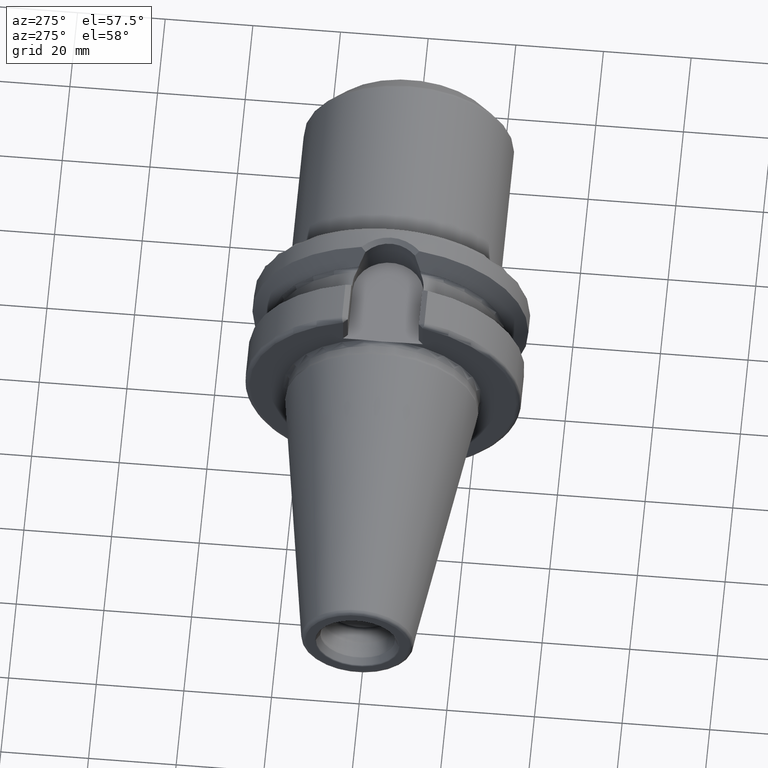
[diagram: clean part render]
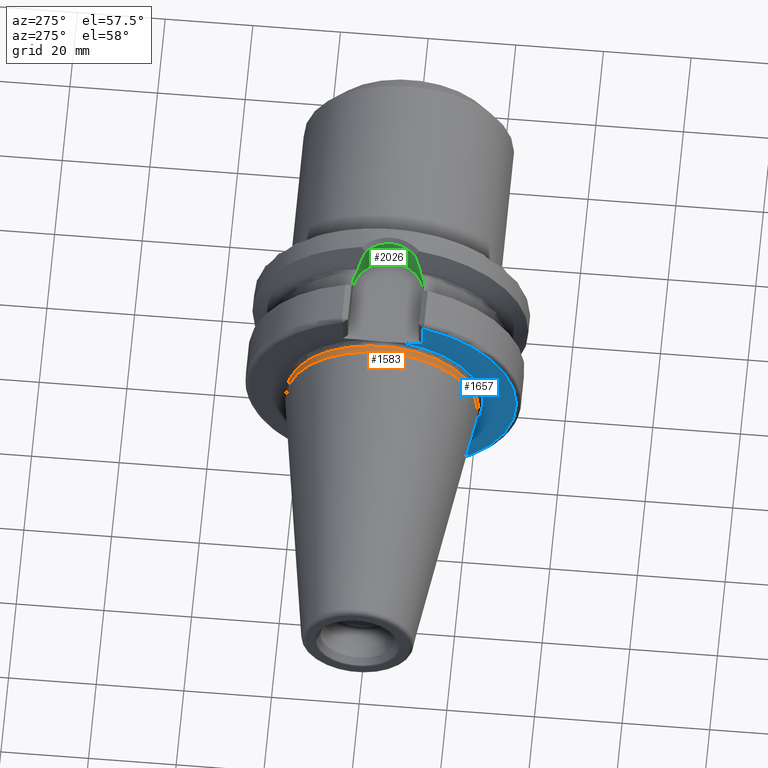
[diagram: same view with three faces highlighted in distinct colors, each labeled with its STEP entity id]
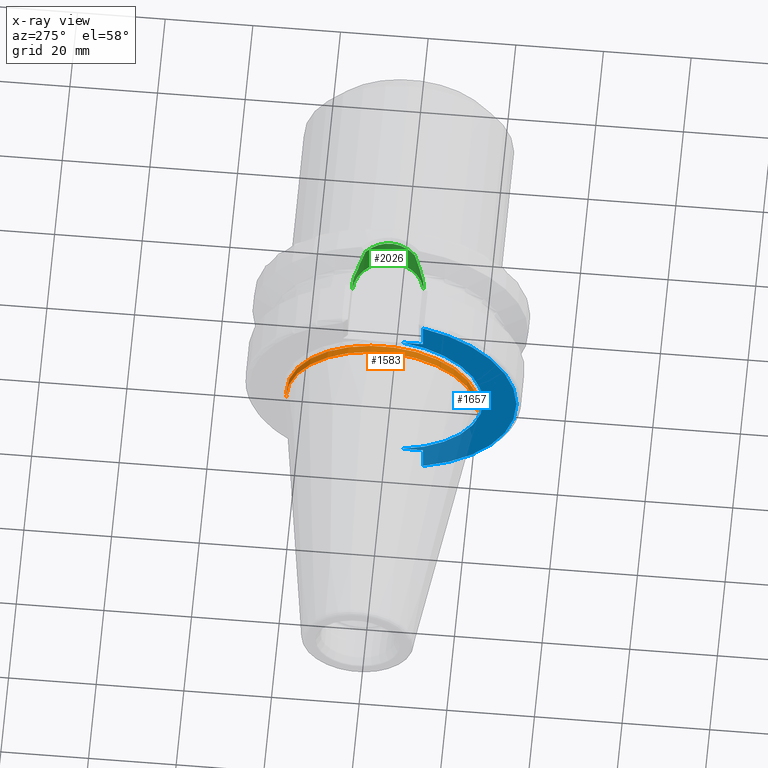
[diagram: x-ray of the same camera — body ghosted, the three highlighted faces saturated]
A machine part, auxiliary view with three faces highlighted in distinct colors.
The next image is the same camera in x-ray (body ghosted, the three faces saturated) — at least one of them is partly hidden behind the body in this view.
Their STEP definitions:

[orange] entity #1583 — the highlighted cylindrical surface (partial cylindrical patch) has radius 21.875 mm, axis along (1, 0, 0).
#73=CARTESIAN_POINT('',(-6.5E-1,0.E0,0.E0));
#74=DIRECTION('',(1.E0,0.E0,0.E0));
#75=DIRECTION('',(0.E0,1.E0,0.E0));
#76=AXIS2_PLACEMENT_3D('',#73,#74,#75);
#78=CARTESIAN_POINT('',(1.E0,0.E0,0.E0));
#79=DIRECTION('',(1.E0,0.E0,0.E0));
#80=DIRECTION('',(0.E0,1.E0,0.E0));
#81=AXIS2_PLACEMENT_3D('',#78,#79,#80);
#83=DIRECTION('',(-1.E0,0.E0,0.E0));
#84=VECTOR('',#83,1.65E0);
#85=CARTESIAN_POINT('',(1.E0,2.1875E1,0.E0));
#86=LINE('',#85,#84);
#87=DIRECTION('',(-1.E0,0.E0,0.E0));
#88=VECTOR('',#87,1.65E0);
#89=CARTESIAN_POINT('',(1.E0,-2.1875E1,0.E0));
#90=LINE('',#89,#88);
#1281=CARTESIAN_POINT('',(1.E0,2.1875E1,0.E0));
#1283=VERTEX_POINT('',#1281);
#1284=CARTESIAN_POINT('',(-6.5E-1,2.1875E1,0.E0));
#1285=VERTEX_POINT('',#1284);
#1287=CARTESIAN_POINT('',(1.E0,-2.1875E1,0.E0));
#1289=VERTEX_POINT('',#1287);
#1290=CARTESIAN_POINT('',(-6.5E-1,-2.1875E1,0.E0));
#1291=VERTEX_POINT('',#1290);
#1569=CARTESIAN_POINT('',(-7.002E1,0.E0,0.E0));
#1570=DIRECTION('',(1.E0,0.E0,0.E0));
#1571=DIRECTION('',(0.E0,-1.E0,0.E0));
#1572=AXIS2_PLACEMENT_3D('',#1569,#1570,#1571);
#1573=CYLINDRICAL_SURFACE('',#1572,2.1875E1);
#1575=ORIENTED_EDGE('',*,*,#1574,.F.);
#1577=ORIENTED_EDGE('',*,*,#1576,.T.);
#1579=ORIENTED_EDGE('',*,*,#1578,.T.);
#1580=ORIENTED_EDGE('',*,*,#1562,.F.);
#1581=EDGE_LOOP('',(#1575,#1577,#1579,#1580));
#1582=FACE_OUTER_BOUND('',#1581,.F.);
#1583=ADVANCED_FACE('',(#1582),#1573,.T.);
#77=CIRCLE('',#76,2.1875E1);
#82=CIRCLE('',#81,2.1875E1);
#1562=EDGE_CURVE('',#1285,#1291,#77,.T.);
#1574=EDGE_CURVE('',#1283,#1285,#86,.T.);
#1576=EDGE_CURVE('',#1283,#1289,#82,.T.);
#1578=EDGE_CURVE('',#1289,#1291,#90,.T.);

[blue] entity #1657 — the highlighted planar face has unit normal (1, 0, 0).
#111=CARTESIAN_POINT('',(2.E0,0.E0,0.E0));
#112=DIRECTION('',(-1.E0,0.E0,0.E0));
#113=DIRECTION('',(0.E0,-1.918678763451E-1,-9.814207650273E-1));
#114=AXIS2_PLACEMENT_3D('',#111,#112,#113);
#135=DIRECTION('',(-2.137863157207E-6,2.138092595446E-6,-9.999999999954E-1));
#136=VECTOR('',#135,6.649288203879E0);
#137=CARTESIAN_POINT('',(2.E0,-9.095E0,-2.245E1));
#138=LINE('',#137,#136);
#139=DIRECTION('',(4.462834027234E-6,-4.463945838797E-6,-9.999999999801E-1));
#140=VECTOR('',#139,6.649296399172E0);
#141=CARTESIAN_POINT('',(1.999970325294E0,-9.094970317901E0,2.909929639904E1));
#142=LINE('',#141,#140);
#597=CARTESIAN_POINT('',(1.999985784732E0,-9.094985783206E0,-2.909928820385E1));
#608=CARTESIAN_POINT('',(2.E0,0.E0,0.E0));
#609=DIRECTION('',(-1.E0,0.E0,0.E0));
#610=DIRECTION('',(0.E0,-2.983190208830E-1,-9.544662182495E-1));
#611=AXIS2_PLACEMENT_3D('',#608,#609,#610);
#684=DIRECTION('',(0.E0,1.E0,0.E0));
#685=VECTOR('',#684,4.706022328605E0);
#686=CARTESIAN_POINT('',(2.E0,-9.095E0,2.245E1));
#687=LINE('',#686,#685);
#725=CARTESIAN_POINT('',(2.E0,0.E0,0.E0));
#726=DIRECTION('',(1.E0,0.E0,0.E0));
#727=DIRECTION('',(0.E0,-1.918678763451E-1,9.814207650273E-1));
#728=AXIS2_PLACEMENT_3D('',#725,#726,#727);
#750=DIRECTION('',(0.E0,-1.E0,0.E0));
#751=VECTOR('',#750,4.706022328605E0);
#752=CARTESIAN_POINT('',(2.E0,-4.388977671395E0,-2.245E1));
#753=LINE('',#752,#751);
#1286=CARTESIAN_POINT('',(2.E0,-2.2875E1,0.E0));
#1288=VERTEX_POINT('',#1286);
#1352=CARTESIAN_POINT('',(2.E0,-4.388977671395E0,2.245E1));
#1353=VERTEX_POINT('',#1352);
#1360=CARTESIAN_POINT('',(2.E0,-4.388977671395E0,-2.245E1));
#1361=VERTEX_POINT('',#1360);
#1390=CARTESIAN_POINT('',(1.999970325294E0,-9.094970317901E0,2.909929639904E1));
#1391=CARTESIAN_POINT('',(2.E0,-9.095E0,2.245E1));
#1392=VERTEX_POINT('',#1390);
#1393=VERTEX_POINT('',#1391);
#1415=VERTEX_POINT('',#597);
#1417=CARTESIAN_POINT('',(2.E0,-9.095E0,-2.245E1));
#1418=VERTEX_POINT('',#1417);
#1637=CARTESIAN_POINT('',(2.E0,0.E0,0.E0));
#1638=DIRECTION('',(1.E0,0.E0,0.E0));
#1639=DIRECTION('',(0.E0,-1.E0,0.E0));
#1640=AXIS2_PLACEMENT_3D('',#1637,#1638,#1639);
#1641=PLANE('',#1640);
#1643=ORIENTED_EDGE('',*,*,#1642,.F.);
#1645=ORIENTED_EDGE('',*,*,#1644,.F.);
#1646=ORIENTED_EDGE('',*,*,#1609,.T.);
#1648=ORIENTED_EDGE('',*,*,#1647,.F.);
#1650=ORIENTED_EDGE('',*,*,#1649,.F.);
#1652=ORIENTED_EDGE('',*,*,#1651,.F.);
#1654=ORIENTED_EDGE('',*,*,#1653,.F.);
#1655=EDGE_LOOP('',(#1643,#1645,#1646,#1648,#1650,#1652,#1654));
#1656=FACE_OUTER_BOUND('',#1655,.F.);
#1657=ADVANCED_FACE('',(#1656),#1641,.F.);
#115=CIRCLE('',#114,2.2875E1);
#612=CIRCLE('',#611,3.04875E1);
#729=CIRCLE('',#728,2.2875E1);
#1609=EDGE_CURVE('',#1361,#1288,#115,.T.);
#1642=EDGE_CURVE('',#1418,#1415,#138,.T.);
#1644=EDGE_CURVE('',#1361,#1418,#753,.T.);
#1647=EDGE_CURVE('',#1353,#1288,#729,.T.);
#1649=EDGE_CURVE('',#1393,#1353,#687,.T.);
#1651=EDGE_CURVE('',#1392,#1393,#142,.T.);
#1653=EDGE_CURVE('',#1415,#1392,#612,.T.);

[green] entity #2026 — the highlighted cylindrical surface (edge-blend (fillet) strip) has radius 8.095 mm, axis along (0, 0, 1).
#360=CARTESIAN_POINT('',(1.83875E1,7.421588020768E0,2.530929979770E1));
#361=CARTESIAN_POINT('',(1.804170386658E1,7.572200800424E0,2.526513476705E1));
#362=CARTESIAN_POINT('',(1.734035783533E1,7.820815510938E0,2.518941465745E1));
#363=CARTESIAN_POINT('',(1.625266243215E1,8.045449937199E0,2.511808739773E1));
#364=CARTESIAN_POINT('',(1.552274115811E1,8.095E0,2.510202382279E1));
#365=CARTESIAN_POINT('',(1.5155E1,8.095E0,2.510202382279E1));
#379=CARTESIAN_POINT('',(1.5155E1,-8.095E0,2.510202382279E1));
#380=CARTESIAN_POINT('',(1.552274116086E1,-8.095E0,2.510202382279E1));
#381=CARTESIAN_POINT('',(1.625266243851E1,-8.045449936191E0,2.511808739805E1));
#382=CARTESIAN_POINT('',(1.734035783411E1,-7.820815511030E0,2.518941465742E1));
#383=CARTESIAN_POINT('',(1.804170386611E1,-7.572200800631E0,2.526513476699E1));
#384=CARTESIAN_POINT('',(1.83875E1,-7.421588020768E0,2.530929979770E1));
#470=DIRECTION('',(0.E0,0.E0,1.E0));
#471=VECTOR('',#470,2.652023822792E0);
#472=CARTESIAN_POINT('',(1.5155E1,-8.095E0,2.245E1));
#473=LINE('',#472,#471);
#474=CARTESIAN_POINT('',(1.91375E1,7.047603759435E0,2.619345159100E1));
#475=CARTESIAN_POINT('',(1.91375E1,7.047603759435E0,2.612998725804E1));
#476=CARTESIAN_POINT('',(1.912324356271E1,7.055692563985E0,2.600243680224E1));
#477=CARTESIAN_POINT('',(1.905138585928E1,7.095863125167E0,2.579909751285E1));
#478=CARTESIAN_POINT('',(1.893129669655E1,7.160762150281E0,2.561408219456E1));
#479=CARTESIAN_POINT('',(1.877499389890E1,7.241428280265E0,2.546209548146E1));
#480=CARTESIAN_POINT('',(1.857872916820E1,7.336410466726E0,2.535018075128E1));
#481=CARTESIAN_POINT('',(1.845215642376E1,7.393426677236E0,2.531755770651E1));
#482=CARTESIAN_POINT('',(1.83875E1,7.421588020768E0,2.530929979770E1));
#484=DIRECTION('',(0.E0,0.E0,1.E0));
#485=VECTOR('',#484,5.185648086091E-2);
#486=CARTESIAN_POINT('',(1.91375E1,7.047603759435E0,2.619345159100E1));
#487=LINE('',#486,#485);
#488=CARTESIAN_POINT('',(2.097101805574E1,5.630538071564E0,2.982397761288E1));
#489=CARTESIAN_POINT('',(2.082604881782E1,5.780282855198E0,2.954017722398E1));
#490=CARTESIAN_POINT('',(2.053095055184E1,6.062081832034E0,2.896282820239E1));
#491=CARTESIAN_POINT('',(2.007321533351E1,6.438417817754E0,2.806855111877E1));
#492=CARTESIAN_POINT('',(1.960693883943E1,6.768577999667E0,2.715904469241E1));
#493=CARTESIAN_POINT('',(1.929432982957E1,6.958981467721E0,2.655036595187E1));
#494=CARTESIAN_POINT('',(1.91375E1,7.047603759435E0,2.624530807186E1));
#496=CARTESIAN_POINT('',(2.097101805574E1,5.630538071564E0,2.982397761288E1));
#497=CARTESIAN_POINT('',(2.105934811851E1,5.539315465481E0,2.984571977166E1));
#498=CARTESIAN_POINT('',(2.147664953399E1,5.087469676785E0,2.995066553172E1));
#499=CARTESIAN_POINT('',(2.213089910678E1,4.192993541984E0,3.013266724858E1));
#500=CARTESIAN_POINT('',(2.276760940421E1,2.877975365343E0,3.032860010333E1));
#501=CARTESIAN_POINT('',(2.315790479168E1,1.477331724989E0,3.045642416986E1));
#502=CARTESIAN_POINT('',(2.329282459092E1,3.489574686597E-2,3.050195760374E1));
#503=CARTESIAN_POINT('',(2.317034749764E1,-1.407990407149E0,3.046059480761E1));
#504=CARTESIAN_POINT('',(2.279239912771E1,-2.811458890034E0,3.033654610003E1));
#505=CARTESIAN_POINT('',(2.216739173750E1,-4.131625063197E0,3.014347060785E1));
#506=CARTESIAN_POINT('',(2.150727212273E1,-5.051007781490E0,2.995873684149E1));
#507=CARTESIAN_POINT('',(2.107584322555E1,-5.522277501799E0,2.984978414564E1));
#508=CARTESIAN_POINT('',(2.097101986641E1,-5.630536201239E0,2.982398115757E1));
#510=CARTESIAN_POINT('',(1.91375E1,-7.047603759435E0,2.624530807186E1));
#511=CARTESIAN_POINT('',(1.929439846909E1,-6.958942680509E0,2.655049946618E1));
#512=CARTESIAN_POINT('',(1.960708097731E1,-6.768483112184E0,2.715932176805E1));
#513=CARTESIAN_POINT('',(2.007318172595E1,-6.438434899025E0,2.806848574420E1));
#514=CARTESIAN_POINT('',(2.053077179900E1,-6.062239171320E0,2.896247872395E1));
#515=CARTESIAN_POINT('',(2.082597009394E1,-5.780364268794E0,2.954002310797E1));
#516=CARTESIAN_POINT('',(2.097101986641E1,-5.630536201239E0,2.982398115757E1));
#518=DIRECTION('',(0.E0,0.E0,1.E0));
#519=VECTOR('',#518,5.185648086090E-2);
#520=CARTESIAN_POINT('',(1.91375E1,-7.047603759435E0,2.619345159100E1));
#521=LINE('',#520,#519);
#522=CARTESIAN_POINT('',(1.83875E1,-7.421588020768E0,2.530929979770E1));
#523=CARTESIAN_POINT('',(1.845215642376E1,-7.393426677236E0,2.531755770651E1));
#524=CARTESIAN_POINT('',(1.857872916820E1,-7.336410466726E0,2.535018075128E1));
#525=CARTESIAN_POINT('',(1.877499389890E1,-7.241428280265E0,2.546209548146E1));
#526=CARTESIAN_POINT('',(1.893129669655E1,-7.160762150281E0,2.561408219456E1));
#527=CARTESIAN_POINT('',(1.905138585928E1,-7.095863125167E0,2.579909751285E1));
#528=CARTESIAN_POINT('',(1.912324356271E1,-7.055692563985E0,2.600243680224E1));
#529=CARTESIAN_POINT('',(1.91375E1,-7.047603759435E0,2.612998725804E1));
#530=CARTESIAN_POINT('',(1.91375E1,-7.047603759435E0,2.619345159100E1));
#661=DIRECTION('',(0.E0,0.E0,1.E0));
#662=VECTOR('',#661,2.652023822792E0);
#663=CARTESIAN_POINT('',(1.5155E1,8.095E0,2.245E1));
#664=LINE('',#663,#662);
#696=CARTESIAN_POINT('',(1.5155E1,0.E0,2.245E1));
#697=DIRECTION('',(0.E0,0.E0,1.E0));
#698=DIRECTION('',(0.E0,-1.E0,0.E0));
#699=AXIS2_PLACEMENT_3D('',#696,#697,#698);
#1232=CARTESIAN_POINT('',(1.91375E1,-7.047603759435E0,2.619345159100E1));
#1234=VERTEX_POINT('',#1232);
#1237=CARTESIAN_POINT('',(1.83875E1,-7.421588020768E0,2.530929979770E1));
#1239=VERTEX_POINT('',#1237);
#1240=CARTESIAN_POINT('',(1.83875E1,7.421588020768E0,2.530929979770E1));
#1242=VERTEX_POINT('',#1240);
#1245=CARTESIAN_POINT('',(1.91375E1,7.047603759435E0,2.619345159100E1));
#1247=VERTEX_POINT('',#1245);
#1248=CARTESIAN_POINT('',(1.91375E1,7.047603759435E0,2.624530807186E1));
#1250=VERTEX_POINT('',#1248);
#1253=CARTESIAN_POINT('',(1.91375E1,-7.047603759435E0,2.624530807186E1));
#1255=VERTEX_POINT('',#1253);
#1346=CARTESIAN_POINT('',(1.5155E1,-8.095E0,2.245E1));
#1347=CARTESIAN_POINT('',(1.5155E1,8.095E0,2.245E1));
#1348=VERTEX_POINT('',#1346);
#1349=VERTEX_POINT('',#1347);
#1362=CARTESIAN_POINT('',(1.5155E1,8.095E0,2.510202382279E1));
#1363=VERTEX_POINT('',#1362);
#1365=CARTESIAN_POINT('',(1.5155E1,-8.095E0,2.510202382279E1));
#1366=VERTEX_POINT('',#1365);
#1368=VERTEX_POINT('',#516);
#1369=VERTEX_POINT('',#488);
#2001=CARTESIAN_POINT('',(1.5155E1,0.E0,2.245E1));
#2002=DIRECTION('',(0.E0,0.E0,1.E0));
#2003=DIRECTION('',(1.E0,0.E0,0.E0));
#2004=AXIS2_PLACEMENT_3D('',#2001,#2002,#2003);
#2005=CYLINDRICAL_SURFACE('',#2004,8.095E0);
#2006=ORIENTED_EDGE('',*,*,#1910,.F.);
#2008=ORIENTED_EDGE('',*,*,#2007,.F.);
#2010=ORIENTED_EDGE('',*,*,#2009,.T.);
#2012=ORIENTED_EDGE('',*,*,#2011,.T.);
#2013=ORIENTED_EDGE('',*,*,#1892,.F.);
#2014=ORIENTED_EDGE('',*,*,#1983,.F.);
#2015=ORIENTED_EDGE('',*,*,#1955,.T.);
#2017=ORIENTED_EDGE('',*,*,#2016,.F.);
#2019=ORIENTED_EDGE('',*,*,#2018,.T.);
#2021=ORIENTED_EDGE('',*,*,#2020,.F.);
#2022=ORIENTED_EDGE('',*,*,#1967,.F.);
#2023=ORIENTED_EDGE('',*,*,#1996,.F.);
#2024=EDGE_LOOP('',(#2006,#2008,#2010,#2012,#2013,#2014,#2015,#2017,#2019,#2021,
#2022,#2023));
#2025=FACE_OUTER_BOUND('',#2024,.F.);
#2026=ADVANCED_FACE('',(#2025),#2005,.F.);
#366=B_SPLINE_CURVE_WITH_KNOTS('',3,(#360,#361,#362,#363,#364,#365),
.UNSPECIFIED.,.F.,.F.,(4,1,1,4),(0.E0,3.333333333333E-1,6.666666666667E-1,1.E0),
.UNSPECIFIED.);
#385=B_SPLINE_CURVE_WITH_KNOTS('',3,(#379,#380,#381,#382,#383,#384),
.UNSPECIFIED.,.F.,.F.,(4,1,1,4),(0.E0,3.333333333333E-1,6.666666666667E-1,1.E0),
.UNSPECIFIED.);
#483=B_SPLINE_CURVE_WITH_KNOTS('',3,(#474,#475,#476,#477,#478,#479,#480,#481,
#482),.UNSPECIFIED.,.F.,.F.,(4,1,1,1,1,1,4),(0.E0,1.666666666667E-1,
3.333333333333E-1,5.E-1,6.666666666667E-1,8.333333333333E-1,1.E0),
.UNSPECIFIED.);
#495=B_SPLINE_CURVE_WITH_KNOTS('',3,(#488,#489,#490,#491,#492,#493,#494),
.UNSPECIFIED.,.F.,.F.,(4,1,1,1,4),(0.E0,2.5E-1,5.E-1,7.5E-1,1.E0),
.UNSPECIFIED.);
#509=B_SPLINE_CURVE_WITH_KNOTS('',3,(#496,#497,#498,#499,#500,#501,#502,#503,
#504,#505,#506,#507,#508),.UNSPECIFIED.,.F.,.F.,(4,1,1,1,1,1,1,1,1,1,4),(0.E0,
3.038567668919E-2,1.470802694969E-1,2.637748623046E-1,3.804694551124E-1,
4.971640479201E-1,6.138586407278E-1,7.305532335355E-1,8.472478263433E-1,
9.639424191510E-1,1.E0),.UNSPECIFIED.);
#517=B_SPLINE_CURVE_WITH_KNOTS('',3,(#510,#511,#512,#513,#514,#515,#516),
.UNSPECIFIED.,.F.,.F.,(4,1,1,1,4),(0.E0,2.5E-1,5.E-1,7.5E-1,1.E0),
.UNSPECIFIED.);
#531=B_SPLINE_CURVE_WITH_KNOTS('',3,(#522,#523,#524,#525,#526,#527,#528,#529,
#530),.UNSPECIFIED.,.F.,.F.,(4,1,1,1,1,1,4),(0.E0,1.666666666667E-1,
3.333333333333E-1,5.E-1,6.666666666667E-1,8.333333333333E-1,1.E0),
.UNSPECIFIED.);
#700=CIRCLE('',#699,8.095E0);
#1892=EDGE_CURVE('',#1242,#1363,#366,.T.);
#1910=EDGE_CURVE('',#1366,#1239,#385,.T.);
#1955=EDGE_CURVE('',#1247,#1250,#487,.T.);
#1967=EDGE_CURVE('',#1234,#1255,#521,.T.);
#1983=EDGE_CURVE('',#1247,#1242,#483,.T.);
#1996=EDGE_CURVE('',#1239,#1234,#531,.T.);
#2007=EDGE_CURVE('',#1348,#1366,#473,.T.);
#2009=EDGE_CURVE('',#1348,#1349,#700,.T.);
#2011=EDGE_CURVE('',#1349,#1363,#664,.T.);
#2016=EDGE_CURVE('',#1369,#1250,#495,.T.);
#2018=EDGE_CURVE('',#1369,#1368,#509,.T.);
#2020=EDGE_CURVE('',#1255,#1368,#517,.T.);